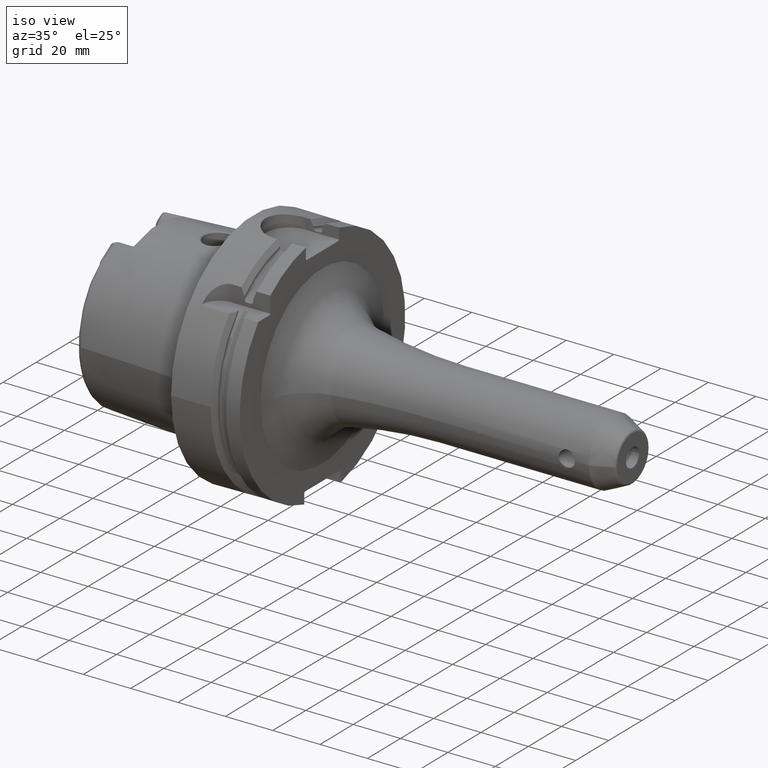
[diagram: clean part render]
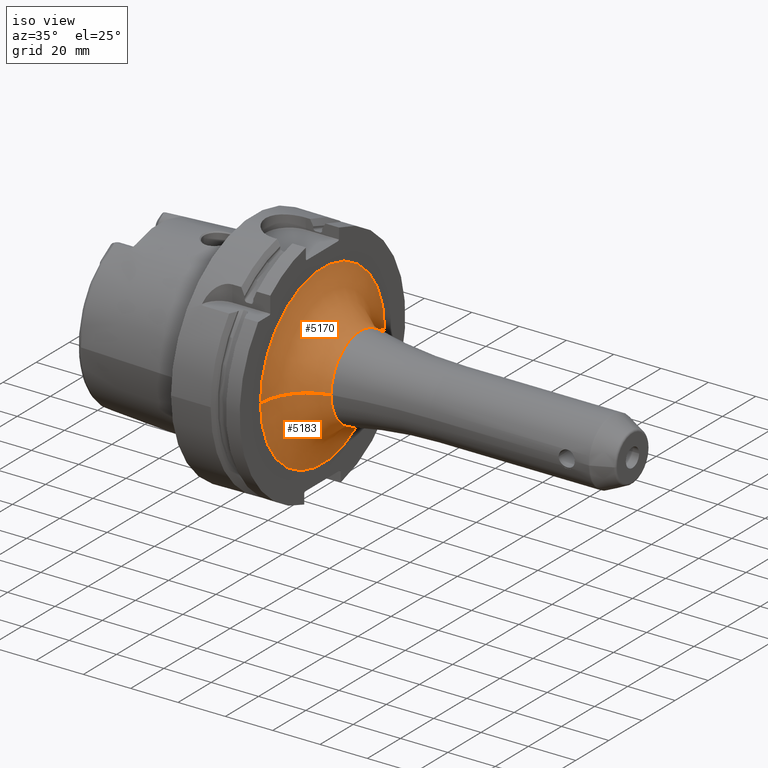
[diagram: same view with one multi-face feature highlighted, each face labeled with its STEP entity id]
A machine part, iso view. The highlighted faces form ONE feature: a constant-radius fillet chain: 2 tangent blend faces with common blend radius 20 mm. The faces share edges in the B-rep.
Their STEP definitions:
[1] entity #5170 (Torus):
#1091=CARTESIAN_POINT('',(2.9E1,0.E0,0.E0));
#1092=DIRECTION('',(1.E0,0.E0,0.E0));
#1093=DIRECTION('',(0.E0,1.E0,0.E0));
#1094=AXIS2_PLACEMENT_3D('',#1091,#1092,#1093);
#1810=CARTESIAN_POINT('',(4.9E1,3.743556416990E1,-1.802585858357E-12));
#1811=DIRECTION('',(0.E0,4.815158688443E-14,1.E0));
#1812=DIRECTION('',(-1.E0,0.E0,0.E0));
#1813=AXIS2_PLACEMENT_3D('',#1810,#1811,#1812);
#1815=CARTESIAN_POINT('',(4.9E1,-3.743556416990E1,1.789846049149E-12));
#1816=DIRECTION('',(0.E0,-4.781071372140E-14,-1.E0));
#1817=DIRECTION('',(-1.E0,0.E0,0.E0));
#1818=AXIS2_PLACEMENT_3D('',#1815,#1816,#1817);
#1825=CARTESIAN_POINT('',(4.511111111111E1,0.E0,0.E0));
#1826=DIRECTION('',(1.E0,0.E0,0.E0));
#1827=DIRECTION('',(0.E0,1.E0,0.E0));
#1828=AXIS2_PLACEMENT_3D('',#1825,#1826,#1827);
#3331=CARTESIAN_POINT('',(2.9E1,3.743556416990E1,1.780584443109E-13));
#3332=CARTESIAN_POINT('',(2.9E1,-3.743556416990E1,-1.734739099274E-13));
#3333=VERTEX_POINT('',#3331);
#3334=VERTEX_POINT('',#3332);
#3335=CARTESIAN_POINT('',(4.511111111111E1,1.781729352212E1,0.E0));
#3336=CARTESIAN_POINT('',(4.511111111111E1,-1.781729352212E1,0.E0));
#3337=VERTEX_POINT('',#3335);
#3338=VERTEX_POINT('',#3336);
#5156=CARTESIAN_POINT('',(4.9E1,0.E0,0.E0));
#5157=DIRECTION('',(1.E0,0.E0,0.E0));
#5158=DIRECTION('',(0.E0,9.999883635990E-1,-4.824175214827E-3));
#5159=AXIS2_PLACEMENT_3D('',#5156,#5157,#5158);
#5160=TOROIDAL_SURFACE('',#5159,3.743556416990E1,2.E1);
#5161=ORIENTED_EDGE('',*,*,#4436,.F.);
#5163=ORIENTED_EDGE('',*,*,#5162,.T.);
#5165=ORIENTED_EDGE('',*,*,#5164,.T.);
#5167=ORIENTED_EDGE('',*,*,#5166,.F.);
#5168=EDGE_LOOP('',(#5161,#5163,#5165,#5167));
#5169=FACE_OUTER_BOUND('',#5168,.F.);
#5170=ADVANCED_FACE('',(#5169),#5160,.F.);
#1095=CIRCLE('',#1094,3.743556416990E1);
#1814=CIRCLE('',#1813,2.E1);
#1819=CIRCLE('',#1818,2.E1);
#1829=CIRCLE('',#1828,1.781729352212E1);
#4436=EDGE_CURVE('',#3333,#3334,#1095,.T.);
#5162=EDGE_CURVE('',#3333,#3337,#1814,.T.);
#5164=EDGE_CURVE('',#3337,#3338,#1829,.T.);
#5166=EDGE_CURVE('',#3334,#3338,#1819,.T.);
[2] entity #5183 (Torus):
#1096=CARTESIAN_POINT('',(2.9E1,0.E0,0.E0));
#1097=DIRECTION('',(1.E0,0.E0,0.E0));
#1098=DIRECTION('',(0.E0,-1.E0,0.E0));
#1099=AXIS2_PLACEMENT_3D('',#1096,#1097,#1098);
#1810=CARTESIAN_POINT('',(4.9E1,3.743556416990E1,-1.802585858357E-12));
#1811=DIRECTION('',(0.E0,4.815158688443E-14,1.E0));
#1812=DIRECTION('',(-1.E0,0.E0,0.E0));
#1813=AXIS2_PLACEMENT_3D('',#1810,#1811,#1812);
#1815=CARTESIAN_POINT('',(4.9E1,-3.743556416990E1,1.789846049149E-12));
#1816=DIRECTION('',(0.E0,-4.781071372140E-14,-1.E0));
#1817=DIRECTION('',(-1.E0,0.E0,0.E0));
#1818=AXIS2_PLACEMENT_3D('',#1815,#1816,#1817);
#1820=CARTESIAN_POINT('',(4.511111111111E1,0.E0,0.E0));
#1821=DIRECTION('',(1.E0,0.E0,0.E0));
#1822=DIRECTION('',(0.E0,-1.E0,0.E0));
#1823=AXIS2_PLACEMENT_3D('',#1820,#1821,#1822);
#3331=CARTESIAN_POINT('',(2.9E1,3.743556416990E1,1.780584443109E-13));
#3332=CARTESIAN_POINT('',(2.9E1,-3.743556416990E1,-1.734739099274E-13));
#3333=VERTEX_POINT('',#3331);
#3334=VERTEX_POINT('',#3332);
#3335=CARTESIAN_POINT('',(4.511111111111E1,1.781729352212E1,0.E0));
#3336=CARTESIAN_POINT('',(4.511111111111E1,-1.781729352212E1,0.E0));
#3337=VERTEX_POINT('',#3335);
#3338=VERTEX_POINT('',#3336);
#5171=CARTESIAN_POINT('',(4.9E1,0.E0,0.E0));
#5172=DIRECTION('',(1.E0,0.E0,0.E0));
#5173=DIRECTION('',(0.E0,-9.999883635990E-1,4.824175214826E-3));
#5174=AXIS2_PLACEMENT_3D('',#5171,#5172,#5173);
#5175=TOROIDAL_SURFACE('',#5174,3.743556416990E1,2.E1);
#5176=ORIENTED_EDGE('',*,*,#4438,.F.);
#5177=ORIENTED_EDGE('',*,*,#5166,.T.);
#5179=ORIENTED_EDGE('',*,*,#5178,.T.);
#5180=ORIENTED_EDGE('',*,*,#5162,.F.);
#5181=EDGE_LOOP('',(#5176,#5177,#5179,#5180));
#5182=FACE_OUTER_BOUND('',#5181,.F.);
#5183=ADVANCED_FACE('',(#5182),#5175,.F.);
#1100=CIRCLE('',#1099,3.743556416990E1);
#1814=CIRCLE('',#1813,2.E1);
#1819=CIRCLE('',#1818,2.E1);
#1824=CIRCLE('',#1823,1.781729352212E1);
#4438=EDGE_CURVE('',#3334,#3333,#1100,.T.);
#5162=EDGE_CURVE('',#3333,#3337,#1814,.T.);
#5166=EDGE_CURVE('',#3334,#3338,#1819,.T.);
#5178=EDGE_CURVE('',#3338,#3337,#1824,.T.);